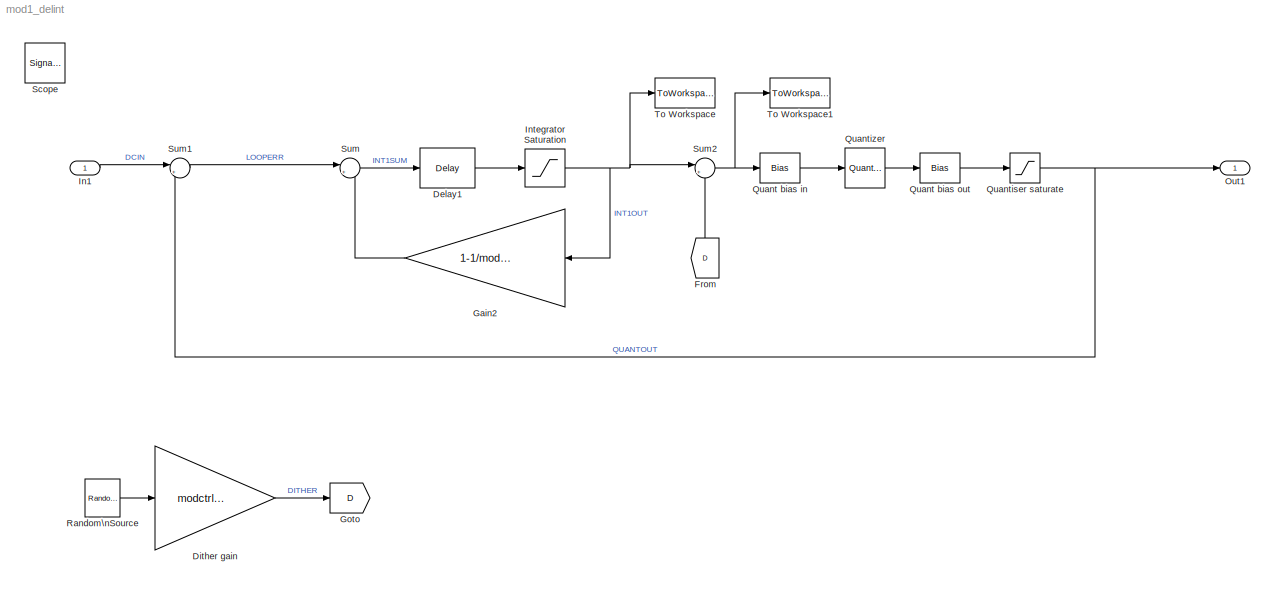
MODEL mod1_delint
KIND model
BLOCK [Reference] Delay1  REF=dspsigops/Delay
  InputProcessing = Inherited (this choice will be removed - see release notes)
  Ports = [1, 1]
  SID = 44
  SourceBlock = dspsigops/Delay
  SourceType = Delay
  UserData = DataTag0
  UserDataPersistent = on
  delay = 1
  dif_ic_for_ch = off
  dif_ic_for_dly = off
  dly_unit = Samples
  ic = 0
  ic_detail = off
  reset_popup = None
BLOCK [Gain] Dither gain
  AttributesFormatString = Dither level adjust
  Gain = modctrl.dgain1
  OutDataTypeStr = Inherit: Inherit via internal rule
  ParamDataTypeStr = Inherit: Inherit via internal rule
  SID = 29
  SaturateOnIntegerOverflow = off
BLOCK [From] From
  GotoTag = D
  SID = 47
BLOCK [Gain] Gain2
  AttributesFormatString = (model finite dc gain)
  Gain = 1-1/modctrl.igain1
  OutDataTypeStr = Inherit: Inherit via internal rule
  ParamDataTypeStr = Inherit: Inherit via internal rule
  SID = 32
  SaturateOnIntegerOverflow = off
BLOCK [Goto] Goto
  GotoTag = D
  SID = 46
BLOCK [Inport] In1
  IconDisplay = Port number
  SID = 42
BLOCK [Saturate] Integrator Saturation
  InputPortMap = u0
  LowerLimit = -(modctrl.isat1)
  Ports = [1, 1]
  SID = 36
  UpperLimit = modctrl.isat1
BLOCK [Outport] Out1
  IconDisplay = Port number
  SID = 43
BLOCK [Bias] Quant bias in
  AttributesFormatString = Need offset to give\\nMID-RISE quantiser
  Bias = 1
  SID = 48
  SaturateOnIntegerOverflow = off
BLOCK [Bias] Quant bias out
  AttributesFormatString = Shift outputs to\\n..., -2, 1, 1, ...
  Bias = -1
  SID = 50
  SaturateOnIntegerOverflow = off
BLOCK [Saturate] Quantiser saturate
  AttributesFormatString = Limit quantiser\\noutput to +/-1
  InputPortMap = u0
  LowerLimit = -1
  Ports = [1, 1]
  SID = 51
  UpperLimit = 1
BLOCK [Quantizer] Quantizer
  AttributesFormatString = step = 2
  LinearizeAsGain = off
  QuantizationInterval = 2
  SID = 49
BLOCK [Reference] Random\nSource  REF=dspsrcs4/Random\nSource
  AttributesFormatString = Dither source
  CltLength = 12
  DataType = Double
  IsInherit = off
  MaxVal = 1
  MeanVal = 0
  MinVal = -1
  NormMethod = Ziggurat
  OutComplex = Real
  Ports = [0, 1]
  RepMode = Not repeatable
  SID = 25
  SampFrame = 1
  SampMode = Discrete
  SampTime = 1e-6
  SourceBlock = dspsrcs4/Random\nSource
  SourceType = Random Source
  SrcType = Uniform
  UserData = DataTag1
  UserDataPersistent = on
  VarVal = 1
  rawSeed = 1
BLOCK [SignalViewerScope] Scope
  IOType = viewer
  MaxDataPoints = 7500
  NumInputPorts = 2
  Ports = []
  RefreshTime = 0.035000
  SID = 52
  ShowDataMarkers = off
  ShowLegends = off
  YMax = 5~5
  YMin = -5~-5
  ZoomMode = xonly
BLOCK [Sum] Sum
  AttributesFormatString = Integrator summer
  IconShape = round
  InputSameDT = off
  Inputs = |++
  OutDataTypeStr = Inherit: Inherit via internal rule
  Ports = [2, 1]
  SID = 3
  SaturateOnIntegerOverflow = off
BLOCK [Sum] Sum1
  AttributesFormatString = Modulator input\\nloop servo error (input - fbk)
  IconShape = round
  InputSameDT = off
  Inputs = |+-
  OutDataTypeStr = Inherit: Inherit via internal rule
  Ports = [2, 1]
  SID = 7
  SaturateOnIntegerOverflow = off
BLOCK [Sum] Sum2
  IconShape = round
  InputSameDT = off
  Inputs = |++
  OutDataTypeStr = Inherit: Inherit via internal rule
  Ports = [2, 1]
  SID = 30
  SaturateOnIntegerOverflow = off
BLOCK [ToWorkspace] To Workspace
  MaxDataPoints = inf
  Ports = [1]
  SID = 53
  SampleTime = -1
  SaveFormat = Structure
  VariableName = INT1OUT
BLOCK [ToWorkspace] To Workspace1
  MaxDataPoints = inf
  Ports = [1]
  SID = 54
  SampleTime = -1
  SaveFormat = Structure
  VariableName = Qin
LINE Delay1:1 -> Integrator Saturation:1
LINE Dither gain:1 -> Goto:1
LINE From:1 -> Sum2:2
LINE Gain2:1 -> Sum:2
LINE In1:1 -> Sum1:1
NET Integrator Saturation:1 -> Gain2:1, Sum2:1, To Workspace:1
LINE Quant bias in:1 -> Quantizer:1
LINE Quant bias out:1 -> Quantiser saturate:1
NET Quantiser saturate:1 -> Out1:1, Sum1:2
LINE Quantizer:1 -> Quant bias out:1
LINE Random\nSource:1 -> Dither gain:1
LINE Sum1:1 -> Sum:1
NET Sum2:1 -> Quant bias in:1, To Workspace1:1
LINE Sum:1 -> Delay1:1
note: NET lines group one-source signal fan-out (src -> all destinations, sorted); 1:1 wires keep LINE
